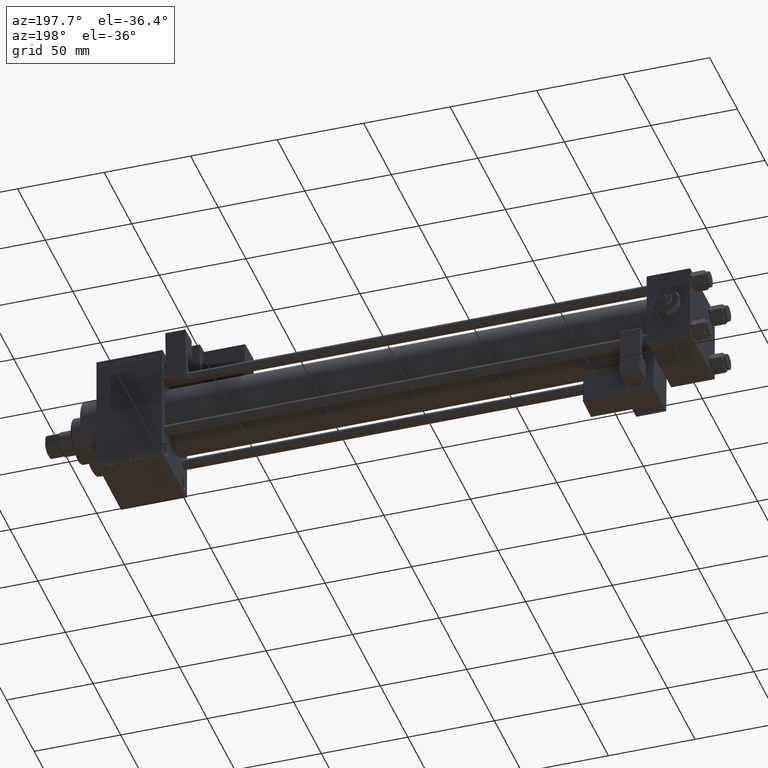
[diagram: clean part render]
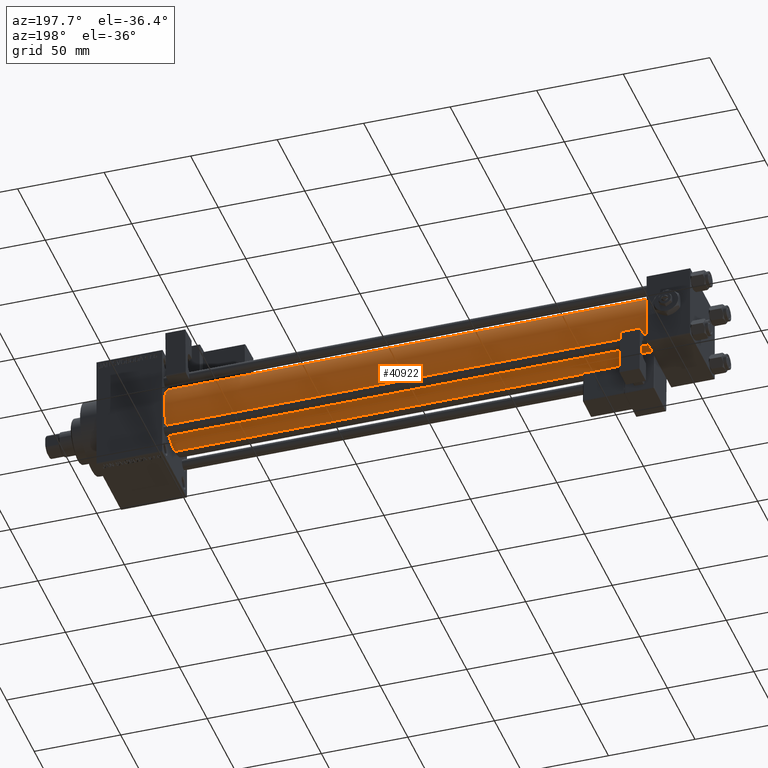
[diagram: same view with one face highlighted and labeled with its STEP entity id]
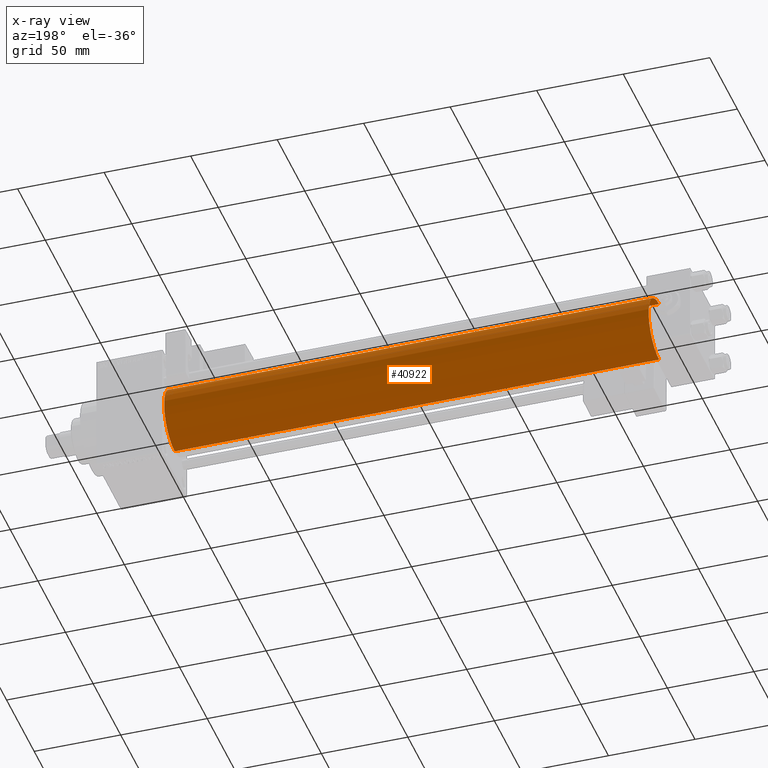
[diagram: x-ray of the same camera — body ghosted, the highlighted face saturated]
A machine part, auxiliary view. The second image highlights one B-rep face of the part: STEP entity #40922.
The next image is the same camera in x-ray: the body ghosted, the highlighted face saturated — about 0% of this face is hidden behind the body in this view.
In plain terms, the highlighted cylindrical surface (edge-blend (fillet) strip) has radius 19 mm, axis along (-1, -0, -0).
Its self-contained STEP definition (entity closure, byte-faithful):
#355 = CIRCLE ( 'NONE', #22558, 19.00000000000000000 ) ;
#988 = CARTESIAN_POINT ( 'NONE',  ( 25.00000000000002132, -2.602085213965210642E-15, 19.00000000000000000 ) ) ;
#3115 = CARTESIAN_POINT ( 'NONE',  ( 25.00000000000002132, -2.752562955852396712E-16, -19.00000000000000000 ) ) ;
#4940 = DIRECTION ( 'NONE',  ( 1.000000000000000000, 0.000000000000000000, 0.000000000000000000 ) ) ;
#5619 = DIRECTION ( 'NONE',  ( -1.000000000000000000, -0.000000000000000000, -0.000000000000000000 ) ) ;
#5925 = DIRECTION ( 'NONE',  ( -1.000000000000000000, -0.000000000000000000, -0.000000000000000000 ) ) ;
#7128 = ORIENTED_EDGE ( 'NONE', *, *, #34814, .T. ) ;
#7763 = LINE ( 'NONE', #27320, #36087 ) ;
#10309 = CARTESIAN_POINT ( 'NONE',  ( 305.0000000000000568, -2.602085213965210642E-15, 19.00000000000000000 ) ) ;
#11541 = AXIS2_PLACEMENT_3D ( 'NONE', #28356, #4940, #45502 ) ;
#13930 = ORIENTED_EDGE ( 'NONE', *, *, #37129, .F. ) ;
#15238 = DIRECTION ( 'NONE',  ( -1.000000000000000000, -0.000000000000000000, -0.000000000000000000 ) ) ;
#15437 = ORIENTED_EDGE ( 'NONE', *, *, #16699, .T. ) ;
#16266 = AXIS2_PLACEMENT_3D ( 'NONE', #44186, #5619, #29292 ) ;
#16699 = EDGE_CURVE ( 'NONE', #38102, #40008, #355, .T. ) ;
#17802 = EDGE_LOOP ( 'NONE', ( #13930, #7128, #15437, #35904 ) ) ;
#22558 = AXIS2_PLACEMENT_3D ( 'NONE', #47642, #28114, #43784 ) ;
#23194 = VECTOR ( 'NONE', #5925, 1000.000000000000000 ) ;
#27320 = CARTESIAN_POINT ( 'NONE',  ( 305.0000000000000568, -2.752562955852396712E-16, -19.00000000000000000 ) ) ;
#27775 = VERTEX_POINT ( 'NONE', #37042 ) ;
#28114 = DIRECTION ( 'NONE',  ( 1.000000000000000000, -0.000000000000000000, 0.000000000000000000 ) ) ;
#28356 = CARTESIAN_POINT ( 'NONE',  ( 305.0000000000000568, -2.602085213965210642E-15, 0.000000000000000000 ) ) ;
#29292 = DIRECTION ( 'NONE',  ( 0.000000000000000000, 0.000000000000000000, 1.000000000000000000 ) ) ;
#32121 = CYLINDRICAL_SURFACE ( 'NONE', #16266, 19.00000000000000000 ) ;
#33725 = CIRCLE ( 'NONE', #11541, 19.00000000000000000 ) ;
#34814 = EDGE_CURVE ( 'NONE', #42301, #38102, #7763, .T. ) ;
#35904 = ORIENTED_EDGE ( 'NONE', *, *, #49981, .F. ) ;
#35975 = FACE_OUTER_BOUND ( 'NONE', #17802, .T. ) ;
#36087 = VECTOR ( 'NONE', #15238, 1000.000000000000000 ) ;
#37042 = CARTESIAN_POINT ( 'NONE',  ( 305.0000000000000568, -2.602085213965210642E-15, 19.00000000000000000 ) ) ;
#37129 = EDGE_CURVE ( 'NONE', #42301, #27775, #33725, .T. ) ;
#38102 = VERTEX_POINT ( 'NONE', #3115 ) ;
#40008 = VERTEX_POINT ( 'NONE', #988 ) ;
#40922 = ADVANCED_FACE ( 'NONE', ( #35975 ), #32121, .T. ) ;
#42301 = VERTEX_POINT ( 'NONE', #42316 ) ;
#42316 = CARTESIAN_POINT ( 'NONE',  ( 305.0000000000000568, -2.752562955852396712E-16, -19.00000000000000000 ) ) ;
#43784 = DIRECTION ( 'NONE',  ( 0.000000000000000000, 0.000000000000000000, 1.000000000000000000 ) ) ;
#44186 = CARTESIAN_POINT ( 'NONE',  ( 305.0000000000000568, -2.602085213965210642E-15, 0.000000000000000000 ) ) ;
#45502 = DIRECTION ( 'NONE',  ( 0.000000000000000000, 0.000000000000000000, -1.000000000000000000 ) ) ;
#47642 = CARTESIAN_POINT ( 'NONE',  ( 25.00000000000002132, -2.602085213965210642E-15, 0.000000000000000000 ) ) ;
#48604 = LINE ( 'NONE', #10309, #23194 ) ;
#49981 = EDGE_CURVE ( 'NONE', #27775, #40008, #48604, .T. ) ;